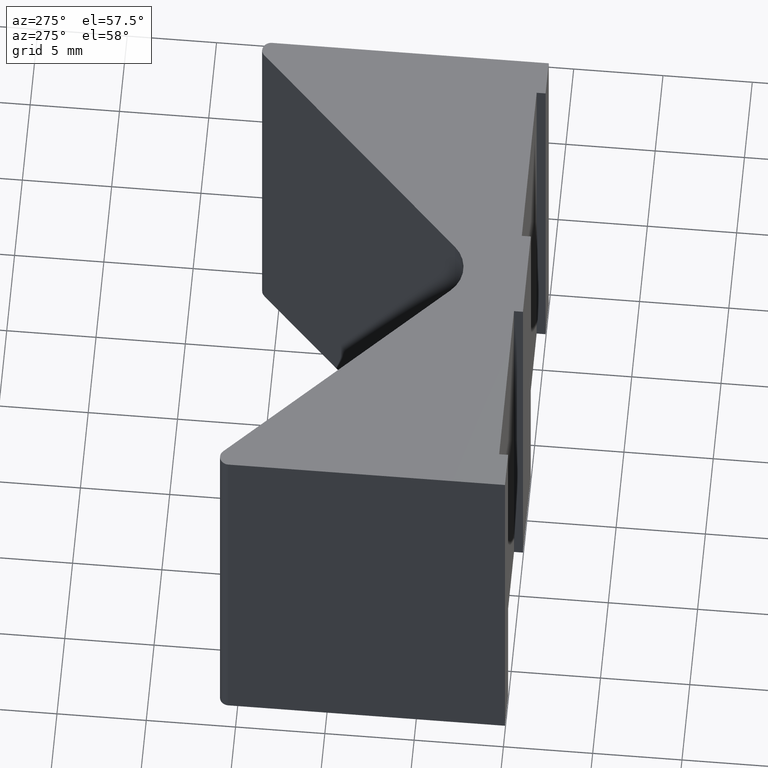
[diagram: clean part render]
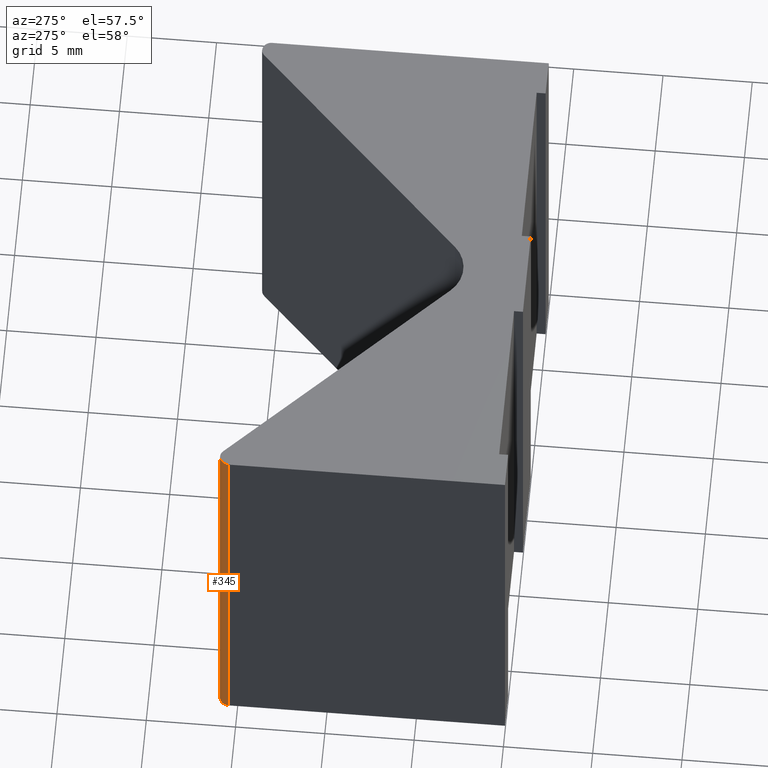
[diagram: same view with one face highlighted and labeled with its STEP entity id]
A machine part, auxiliary view. The second image highlights one B-rep face of the part: STEP entity #345.
In plain terms, the highlighted cylindrical surface (edge-blend (fillet) strip) has radius 0.5 mm, axis along (0, 0, 1).
Its self-contained STEP definition (entity closure, byte-faithful):
#15=CYLINDRICAL_SURFACE('',#389,0.500000000000004);
#28=FACE_OUTER_BOUND('',#46,.T.);
#46=EDGE_LOOP('',(#276,#277,#278,#279));
#54=CIRCLE('',#377,0.500000000000004);
#57=CIRCLE('',#390,0.500000000000004);
#91=LINE('',#563,#133);
#92=LINE('',#567,#134);
#133=VECTOR('',#459,10.);
#134=VECTOR('',#464,10.);
#155=VERTEX_POINT('',#515);
#156=VERTEX_POINT('',#517);
#169=VERTEX_POINT('',#561);
#170=VERTEX_POINT('',#565);
#187=EDGE_CURVE('',#156,#155,#54,.T.);
#210=EDGE_CURVE('',#169,#155,#91,.T.);
#211=EDGE_CURVE('',#169,#170,#57,.T.);
#212=EDGE_CURVE('',#170,#156,#92,.T.);
#276=ORIENTED_EDGE('',*,*,#211,.T.);
#277=ORIENTED_EDGE('',*,*,#212,.T.);
#278=ORIENTED_EDGE('',*,*,#187,.T.);
#279=ORIENTED_EDGE('',*,*,#210,.F.);
#345=ADVANCED_FACE('',(#28),#15,.T.);
#377=AXIS2_PLACEMENT_3D('',#518,#415,#416);
#389=AXIS2_PLACEMENT_3D('',#564,#460,#461);
#390=AXIS2_PLACEMENT_3D('',#566,#462,#463);
#415=DIRECTION('center_axis',(0.,0.,1.));
#416=DIRECTION('ref_axis',(-0.707106781186547,-0.707106781186547,0.));
#459=DIRECTION('',(0.,0.,-1.));
#460=DIRECTION('center_axis',(0.,0.,1.));
#461=DIRECTION('ref_axis',(-0.707106781186547,-0.707106781186547,0.));
#462=DIRECTION('center_axis',(0.,0.,-1.));
#463=DIRECTION('ref_axis',(-0.707106781186547,-0.707106781186547,0.));
#464=DIRECTION('',(0.,0.,-1.));
#515=CARTESIAN_POINT('',(-14.,15.5,-12.5));
#517=CARTESIAN_POINT('',(-13.1464466094067,15.8535533905933,-12.5));
#518=CARTESIAN_POINT('Origin',(-13.5,15.5,-12.5));
#561=CARTESIAN_POINT('',(-14.,15.5,12.5));
#563=CARTESIAN_POINT('',(-14.,15.5,0.));
#564=CARTESIAN_POINT('Origin',(-13.5,15.5,0.));
#565=CARTESIAN_POINT('',(-13.1464466094067,15.8535533905933,12.5));
#566=CARTESIAN_POINT('Origin',(-13.5,15.5,12.5));
#567=CARTESIAN_POINT('',(-13.1464466094067,15.8535533905933,0.));